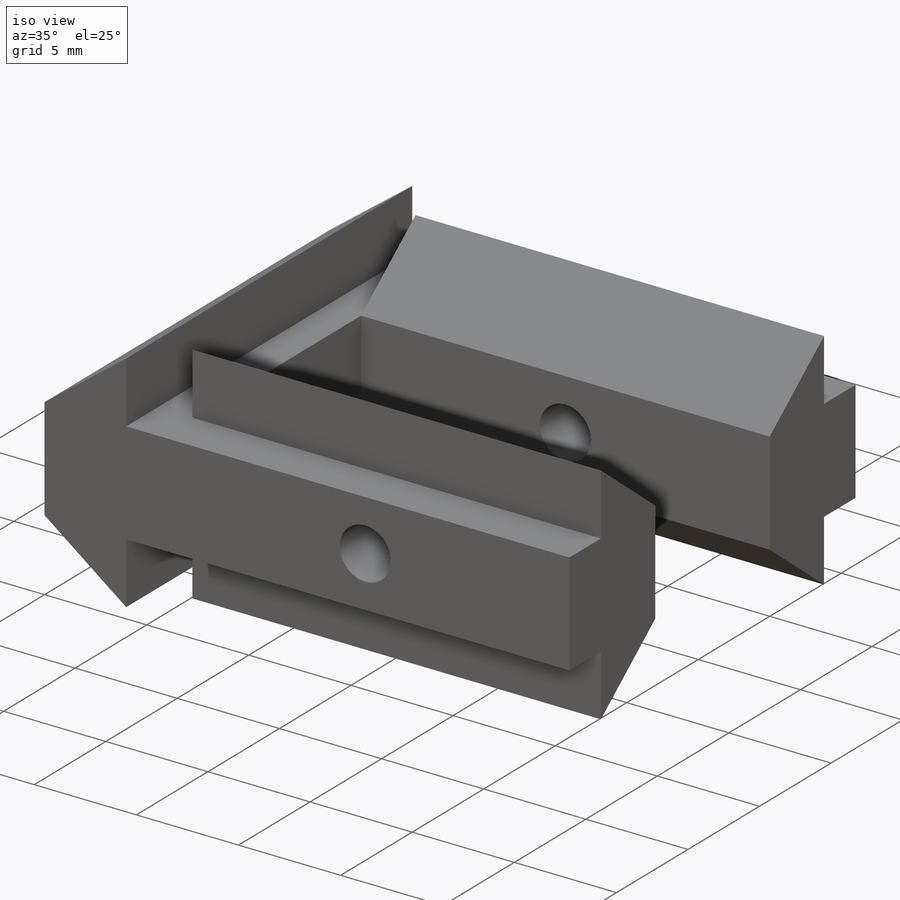
[diagram: iso view]
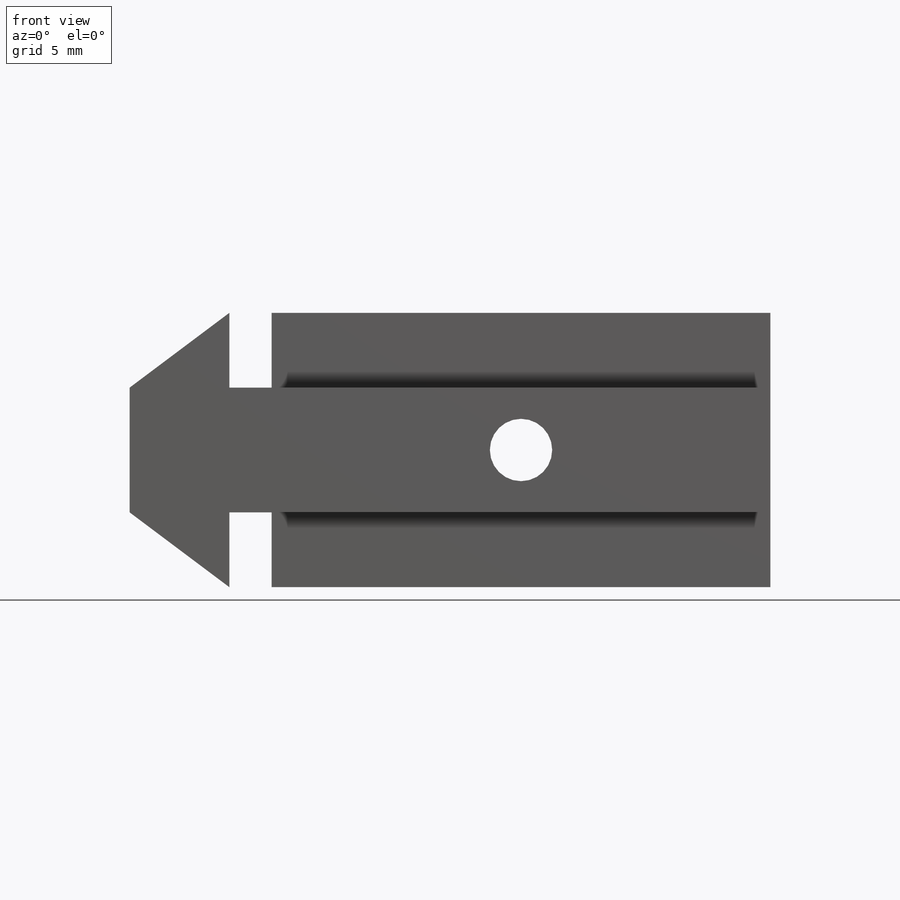
[diagram: front view]
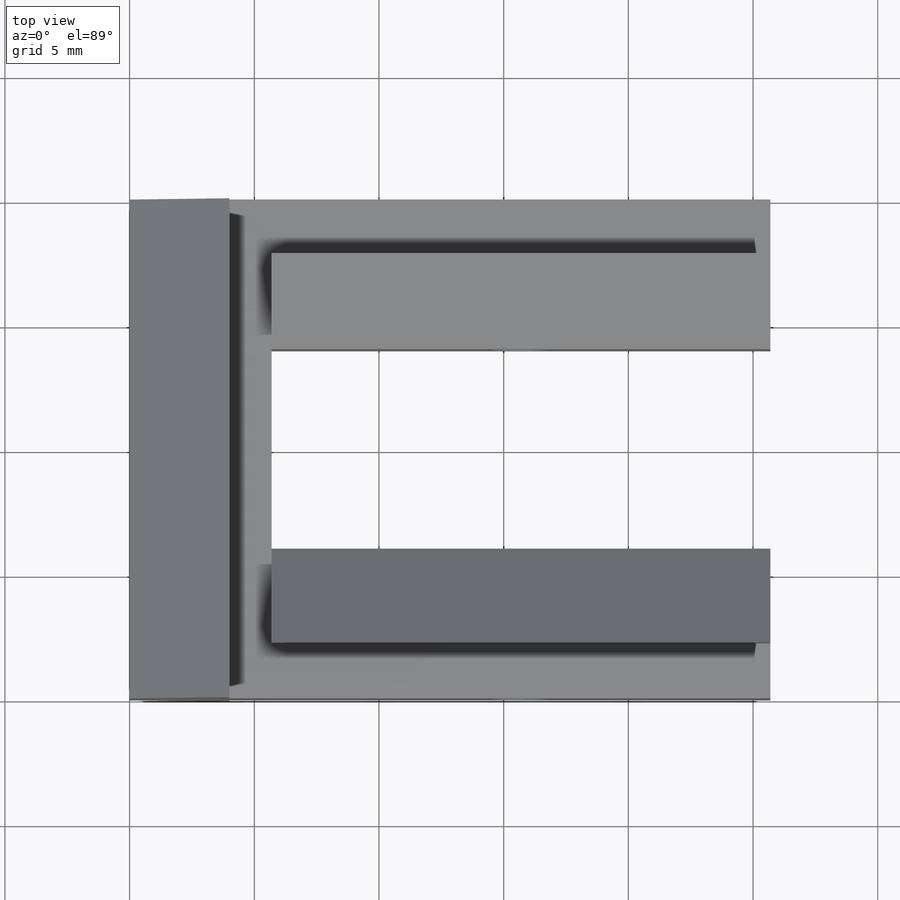
[diagram: top view]
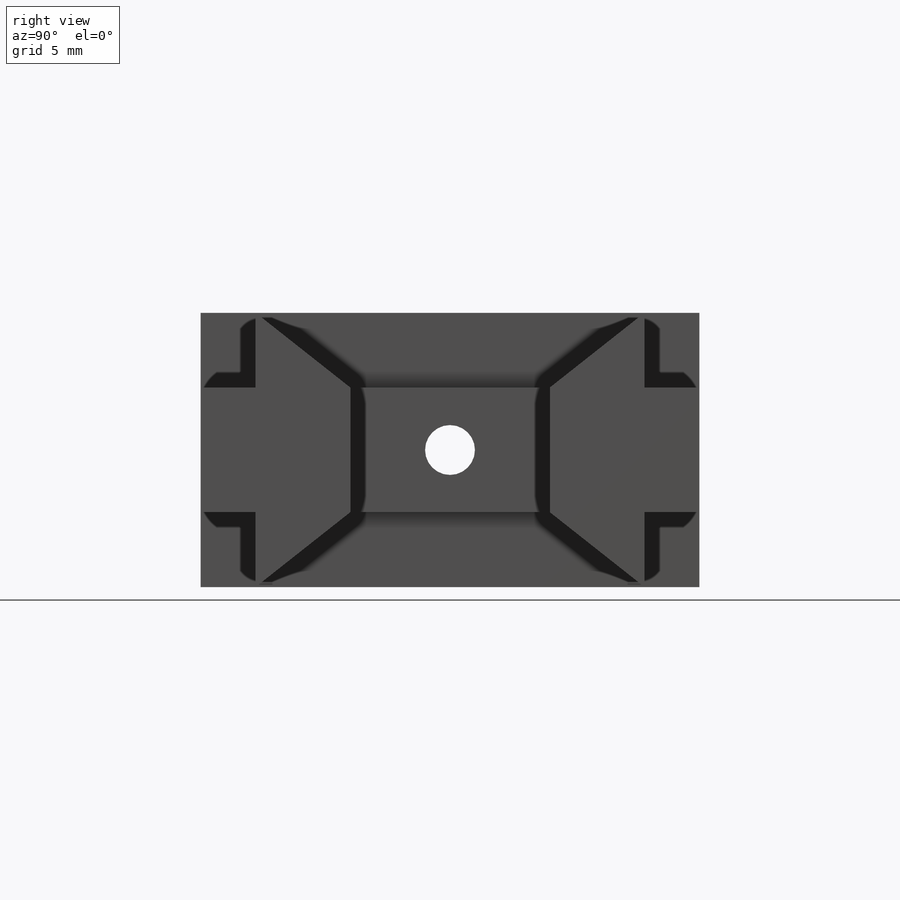
[diagram: right view]
SOLIDWORKS PART (.sldprt)
format: sldprt  version: not decoded by parser v0  size: 365,056 bytes
history: native  units: mm
features: sketch x4, plane x3, extrude x2, cut_extrude x2, material x1 (+8 scaffold rows collapsed)
feature tree (20):
  scaffold x8  (default folders/planes/origin — collapsed)
  material  "Matériau <non spécifié>"
  plane  "Plan de face"
  plane  "Plan de dessus"
  plane  "Plan de droite"
  sketch  "ProfileRainureEsquisse"  dims[c1.D1=4.0mm c1.D2=~5.695841mm c1.D3=~4.208207mm c1.D4=~6.917644mm c1.D5=~2.709437mm c2.D3=5.0mm c2.D4=8.0mm]
  extrude  "Boss.-Extru.1"  Depth=20mm
  sketch  "Esquisse1"  dims[D1=2.0mm D2=10.0mm D3=~10.000021mm]
  cut_extrude  "Enlèv. mat.-Extru.1"  [1 undecoded]
  sketch  "Esquisse2"  dims[D1=2.2mm D2=3.8mm D3=8.0mm]
  extrude  "Boss.-Extru.2"  Depth=20mm
  sketch  "Esquisse3"  dims[D1=2.5mm D2=10.0mm]
  cut_extrude  "Enlèv. mat.-Extru.2"  [1 undecoded]
decode coverage: 6 of 8 modeling features carry decoded parameters
note: ~ marks probable driven/reference dimensions
note: 2 parameter values undecoded
note: suppression state not decoded; provenance and decode notes live in map.json
